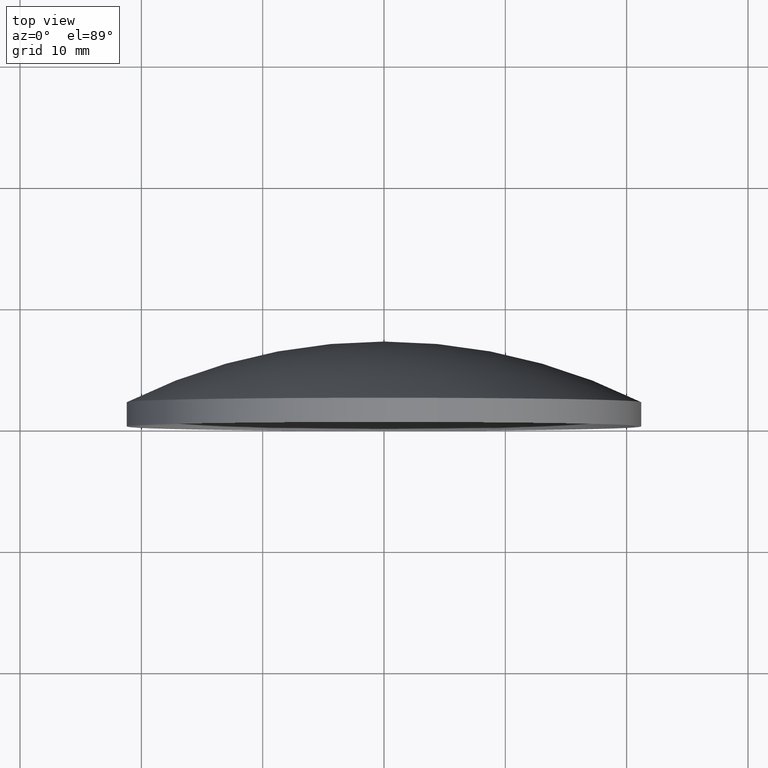
[diagram: clean part render]
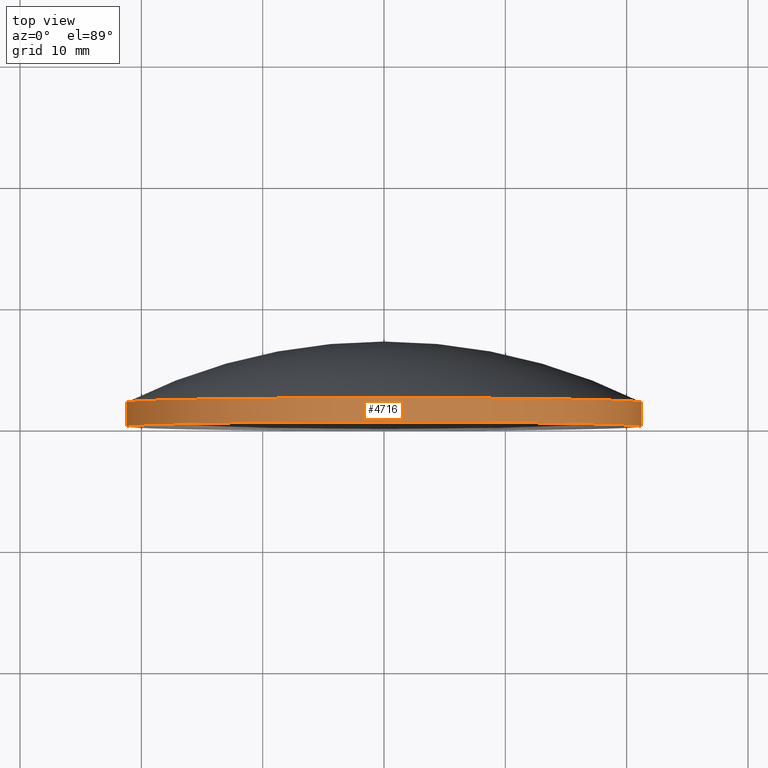
[diagram: same view with one face highlighted and labeled with its STEP entity id]
A machine part, top view. The second image highlights one B-rep face of the part: STEP entity #4716.
In plain terms, the highlighted cylindrical surface (partial cylindrical patch) has radius 21.2 mm, axis along (-0, -1, -0).
Its self-contained STEP definition (entity closure, byte-faithful):
#21 = CARTESIAN_POINT ( 'NONE',  ( 0.0000000000000000000, 4.999999999999990200, 0.0000000000000000000 ) ) ;
#260 = CIRCLE ( 'NONE', #6340, 21.20000000000001700 ) ;
#552 = ORIENTED_EDGE ( 'NONE', *, *, #1650, .T. ) ;
#800 = CARTESIAN_POINT ( 'NONE',  ( 21.19999999999999900, -3.856737457803261500E-015, 0.0000000000000000000 ) ) ;
#840 = VECTOR ( 'NONE', #11304, 1000.000000000000000 ) ;
#1027 = VERTEX_POINT ( 'NONE', #800 ) ;
#1645 = CARTESIAN_POINT ( 'NONE',  ( -21.20000000000002400, 5.000000000000136800, 2.596251214192391900E-015 ) ) ;
#1650 = EDGE_CURVE ( 'NONE', #5969, #5073, #6451, .T. ) ;
#2029 = CARTESIAN_POINT ( 'NONE',  ( 21.20000000000002400, 4.999999999999843700, 0.0000000000000000000 ) ) ;
#2178 = CARTESIAN_POINT ( 'NONE',  ( -21.20000000000007000, 2.900861109939764400E-013, 2.596251214192394300E-015 ) ) ;
#2514 = CARTESIAN_POINT ( 'NONE',  ( -3.466307175138799600E-014, 1.431146867680865900E-013, 0.0000000000000000000 ) ) ;
#3182 = AXIS2_PLACEMENT_3D ( 'NONE', #2514, #3513, #9120 ) ;
#3363 = LINE ( 'NONE', #2029, #840 ) ;
#3421 = EDGE_CURVE ( 'NONE', #7368, #1027, #3363, .T. ) ;
#3513 = DIRECTION ( 'NONE',  ( -6.932614350277811200E-015, -1.000000000000000000, -0.0000000000000000000 ) ) ;
#3515 = DIRECTION ( 'NONE',  ( -6.932614350277811200E-015, -1.000000000000000000, -0.0000000000000000000 ) ) ;
#4142 = EDGE_CURVE ( 'NONE', #7368, #5969, #260, .T. ) ;
#4392 = ORIENTED_EDGE ( 'NONE', *, *, #4142, .T. ) ;
#4523 = FACE_OUTER_BOUND ( 'NONE', #4954, .T. ) ;
#4716 = ADVANCED_FACE ( 'NONE', ( #4523 ), #9245, .T. ) ;
#4919 = DIRECTION ( 'NONE',  ( 1.000000000000000000, -6.914345930190567500E-015, 0.0000000000000000000 ) ) ;
#4954 = EDGE_LOOP ( 'NONE', ( #4392, #552, #9814, #7645 ) ) ;
#5073 = VERTEX_POINT ( 'NONE', #2178 ) ;
#5348 = CARTESIAN_POINT ( 'NONE',  ( 21.19999999999999600, 2.000000000000008900, 0.0000000000000000000 ) ) ;
#5969 = VERTEX_POINT ( 'NONE', #11460 ) ;
#6340 = AXIS2_PLACEMENT_3D ( 'NONE', #9156, #3515, #10119 ) ;
#6451 = LINE ( 'NONE', #1645, #8103 ) ;
#7368 = VERTEX_POINT ( 'NONE', #5348 ) ;
#7418 = CIRCLE ( 'NONE', #3182, 21.20000000000003500 ) ;
#7645 = ORIENTED_EDGE ( 'NONE', *, *, #3421, .F. ) ;
#8103 = VECTOR ( 'NONE', #9152, 1000.000000000000000 ) ;
#8550 = DIRECTION ( 'NONE',  ( -6.932614350277811200E-015, -1.000000000000000000, -0.0000000000000000000 ) ) ;
#9120 = DIRECTION ( 'NONE',  ( 1.000000000000000000, -6.932614350277812000E-015, 0.0000000000000000000 ) ) ;
#9152 = DIRECTION ( 'NONE',  ( -6.932614350277811200E-015, -1.000000000000000000, -0.0000000000000000000 ) ) ;
#9156 = CARTESIAN_POINT ( 'NONE',  ( -2.079784305083228800E-014, 2.000000000000155900, 0.0000000000000000000 ) ) ;
#9245 = CYLINDRICAL_SURFACE ( 'NONE', #11978, 21.20000000000002400 ) ;
#9814 = ORIENTED_EDGE ( 'NONE', *, *, #10744, .F. ) ;
#10119 = DIRECTION ( 'NONE',  ( 1.000000000000000000, -6.934802574954447400E-015, 0.0000000000000000000 ) ) ;
#10744 = EDGE_CURVE ( 'NONE', #1027, #5073, #7418, .T. ) ;
#11304 = DIRECTION ( 'NONE',  ( -6.932614350277811200E-015, -1.000000000000000000, -0.0000000000000000000 ) ) ;
#11460 = CARTESIAN_POINT ( 'NONE',  ( -21.20000000000003800, 2.000000000000302900, 2.596251214192391500E-015 ) ) ;
#11978 = AXIS2_PLACEMENT_3D ( 'NONE', #21, #8550, #4919 ) ;